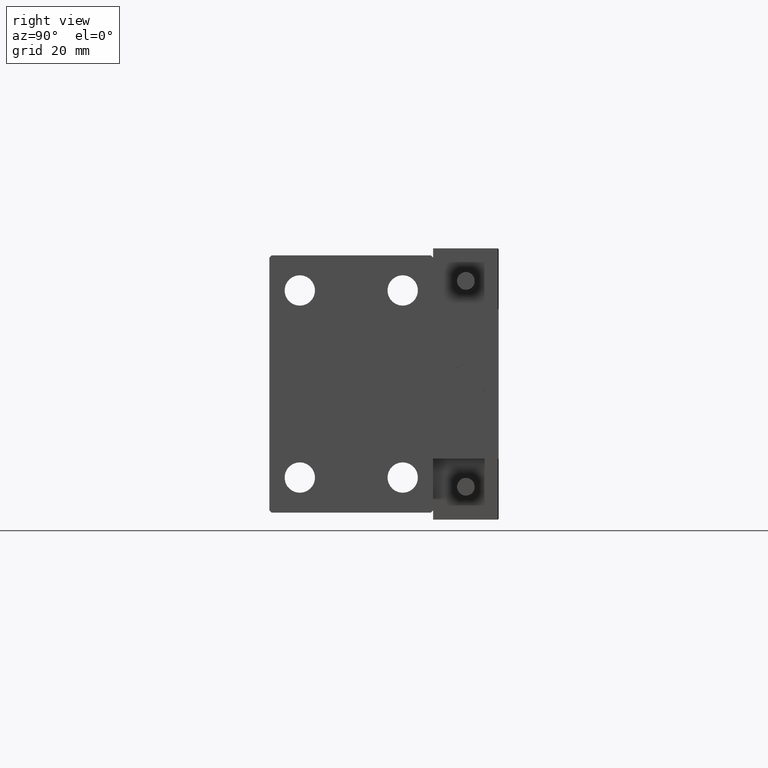
[diagram: clean part render]
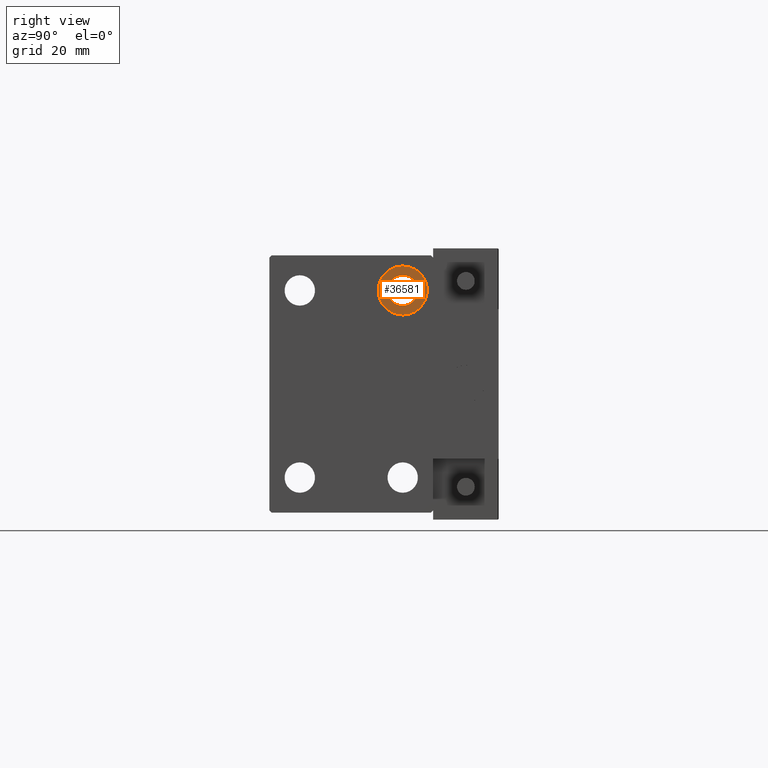
[diagram: same view with one face highlighted and labeled with its STEP entity id]
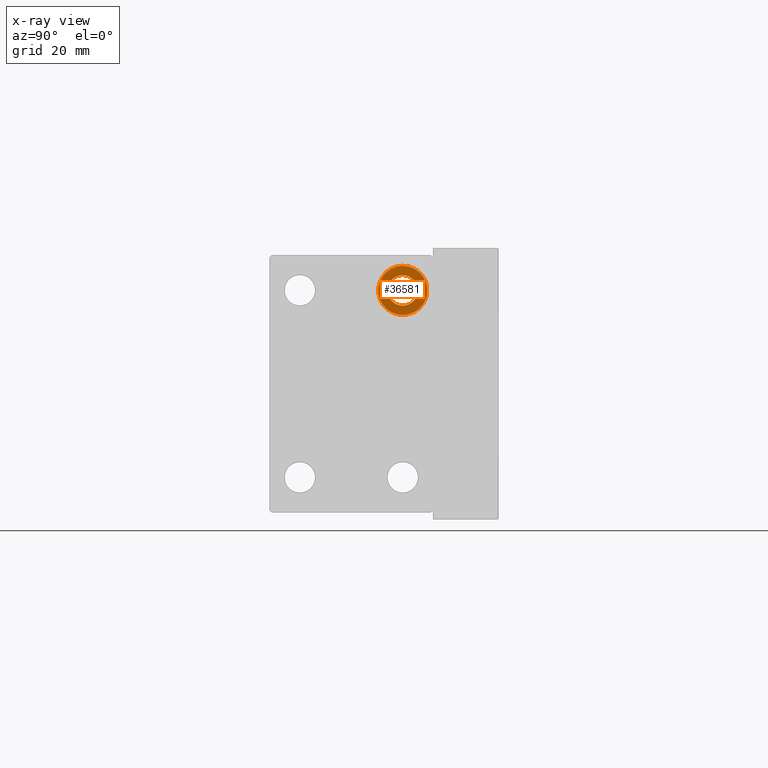
[diagram: x-ray of the same camera — body ghosted, the highlighted face saturated]
A machine part, right view. The second image highlights one B-rep face of the part: STEP entity #36581.
The next image is the same camera in x-ray: the body ghosted, the highlighted face saturated — about 0% of this face is hidden behind the body in this view.
In plain terms, the highlighted planar face has unit normal (1, 0, 0).
Its self-contained STEP definition (entity closure, byte-faithful):
#1397 = FACE_BOUND ( 'NONE', #47258, .T. ) ;
#3142 = AXIS2_PLACEMENT_3D ( 'NONE', #13400, #29070, #5690 ) ;
#5690 = DIRECTION ( 'NONE',  ( 0.000000000000000000, 0.000000000000000000, -1.000000000000000000 ) ) ;
#8500 = VERTEX_POINT ( 'NONE', #15466 ) ;
#9684 = CARTESIAN_POINT ( 'NONE',  ( 59.00000000000000711, 11.00000000000000355, 14.75000000000000000 ) ) ;
#10038 = AXIS2_PLACEMENT_3D ( 'NONE', #39380, #30913, #15488 ) ;
#12056 = CARTESIAN_POINT ( 'NONE',  ( 59.00000000000000711, 11.00000000000000355, 23.25000000000000000 ) ) ;
#12158 = CIRCLE ( 'NONE', #10038, 5.250000000000000888 ) ;
#13224 = DIRECTION ( 'NONE',  ( 0.000000000000000000, 0.000000000000000000, 1.000000000000000000 ) ) ;
#13400 = CARTESIAN_POINT ( 'NONE',  ( 59.00000000000000711, 11.00000000000000355, 20.00000000000000000 ) ) ;
#14244 = EDGE_LOOP ( 'NONE', ( #48977, #47022 ) ) ;
#15466 = CARTESIAN_POINT ( 'NONE',  ( 59.00000000000000711, 11.00000000000000355, 25.25000000000000000 ) ) ;
#15488 = DIRECTION ( 'NONE',  ( 0.000000000000000000, 0.000000000000000000, 1.000000000000000000 ) ) ;
#16239 = VERTEX_POINT ( 'NONE', #9684 ) ;
#19668 = VERTEX_POINT ( 'NONE', #33152 ) ;
#20369 = DIRECTION ( 'NONE',  ( -1.000000000000000000, -0.000000000000000000, -0.000000000000000000 ) ) ;
#21010 = AXIS2_PLACEMENT_3D ( 'NONE', #48944, #29150, #13224 ) ;
#22676 = EDGE_CURVE ( 'NONE', #8500, #16239, #39897, .T. ) ;
#24060 = DIRECTION ( 'NONE',  ( -1.000000000000000000, -0.000000000000000000, -0.000000000000000000 ) ) ;
#24333 = AXIS2_PLACEMENT_3D ( 'NONE', #39212, #24060, #28402 ) ;
#26530 = EDGE_CURVE ( 'NONE', #29041, #19668, #40881, .T. ) ;
#27217 = EDGE_CURVE ( 'NONE', #16239, #8500, #12158, .T. ) ;
#28402 = DIRECTION ( 'NONE',  ( 0.000000000000000000, 0.000000000000000000, 1.000000000000000000 ) ) ;
#28829 = DIRECTION ( 'NONE',  ( 0.000000000000000000, 0.000000000000000000, -1.000000000000000000 ) ) ;
#29041 = VERTEX_POINT ( 'NONE', #12056 ) ;
#29070 = DIRECTION ( 'NONE',  ( -1.000000000000000000, -0.000000000000000000, -0.000000000000000000 ) ) ;
#29150 = DIRECTION ( 'NONE',  ( 1.000000000000000000, 0.000000000000000000, -0.000000000000000000 ) ) ;
#30913 = DIRECTION ( 'NONE',  ( -1.000000000000000000, -0.000000000000000000, -0.000000000000000000 ) ) ;
#30929 = CIRCLE ( 'NONE', #50650, 3.249999999999999556 ) ;
#32682 = CARTESIAN_POINT ( 'NONE',  ( 59.00000000000000711, 11.00000000000000355, 20.00000000000000000 ) ) ;
#33152 = CARTESIAN_POINT ( 'NONE',  ( 59.00000000000000711, 11.00000000000000355, 16.75000000000000000 ) ) ;
#33254 = FACE_OUTER_BOUND ( 'NONE', #14244, .T. ) ;
#34788 = ORIENTED_EDGE ( 'NONE', *, *, #26530, .T. ) ;
#36107 = PLANE ( 'NONE',  #21010 ) ;
#36581 = ADVANCED_FACE ( 'NONE', ( #33254, #1397 ), #36107, .T. ) ;
#39212 = CARTESIAN_POINT ( 'NONE',  ( 59.00000000000000711, 11.00000000000000355, 20.00000000000000000 ) ) ;
#39380 = CARTESIAN_POINT ( 'NONE',  ( 59.00000000000000711, 11.00000000000000355, 20.00000000000000000 ) ) ;
#39897 = CIRCLE ( 'NONE', #24333, 5.250000000000000888 ) ;
#40881 = CIRCLE ( 'NONE', #3142, 3.249999999999999556 ) ;
#45856 = ORIENTED_EDGE ( 'NONE', *, *, #49946, .T. ) ;
#47022 = ORIENTED_EDGE ( 'NONE', *, *, #22676, .F. ) ;
#47258 = EDGE_LOOP ( 'NONE', ( #34788, #45856 ) ) ;
#48944 = CARTESIAN_POINT ( 'NONE',  ( 59.00000000000000711, 0.000000000000000000, 0.000000000000000000 ) ) ;
#48977 = ORIENTED_EDGE ( 'NONE', *, *, #27217, .F. ) ;
#49946 = EDGE_CURVE ( 'NONE', #19668, #29041, #30929, .T. ) ;
#50650 = AXIS2_PLACEMENT_3D ( 'NONE', #32682, #20369, #28829 ) ;